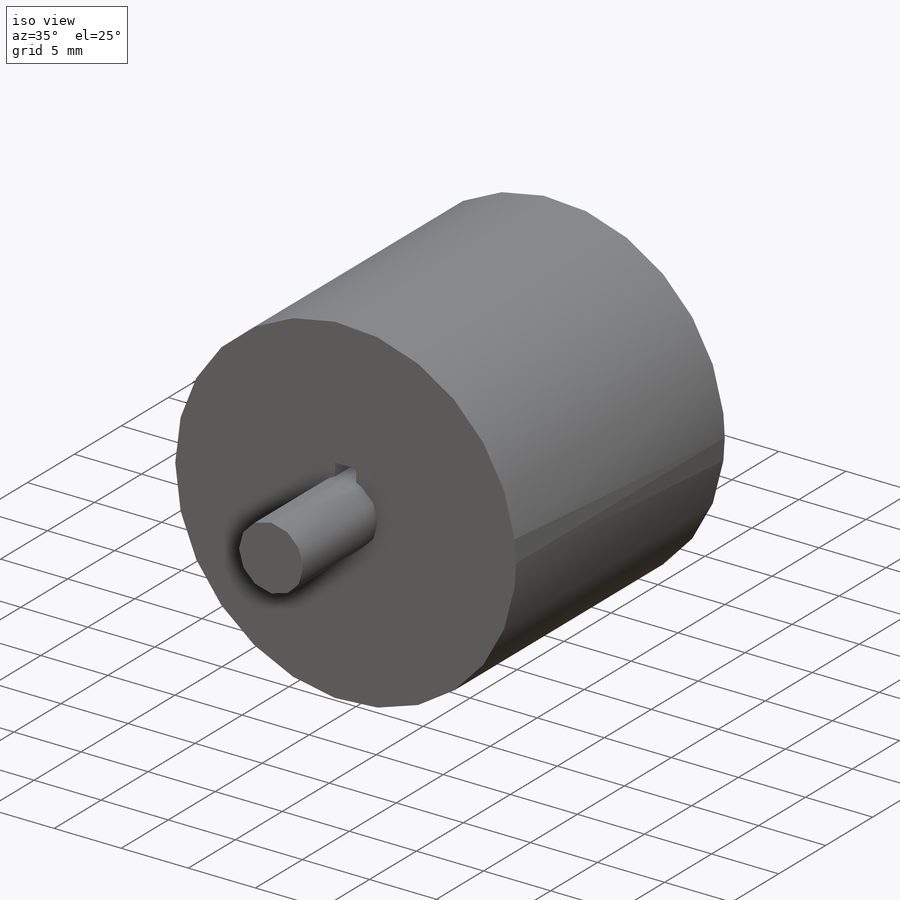
[diagram: iso view]
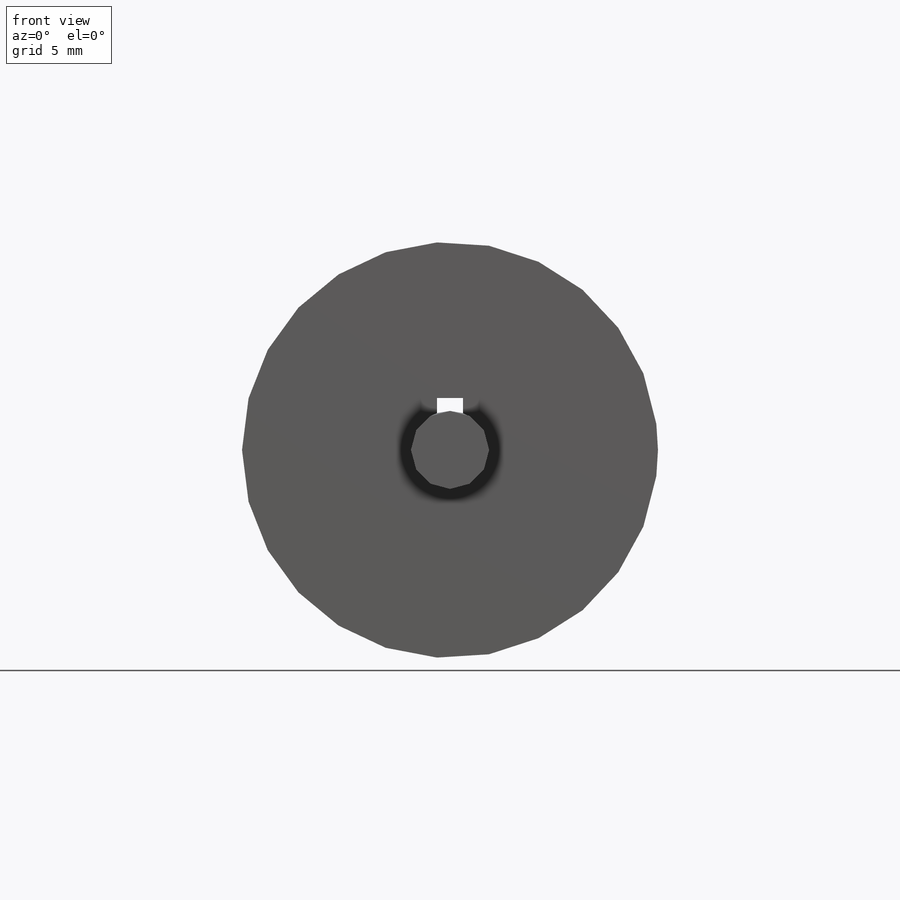
[diagram: front view]
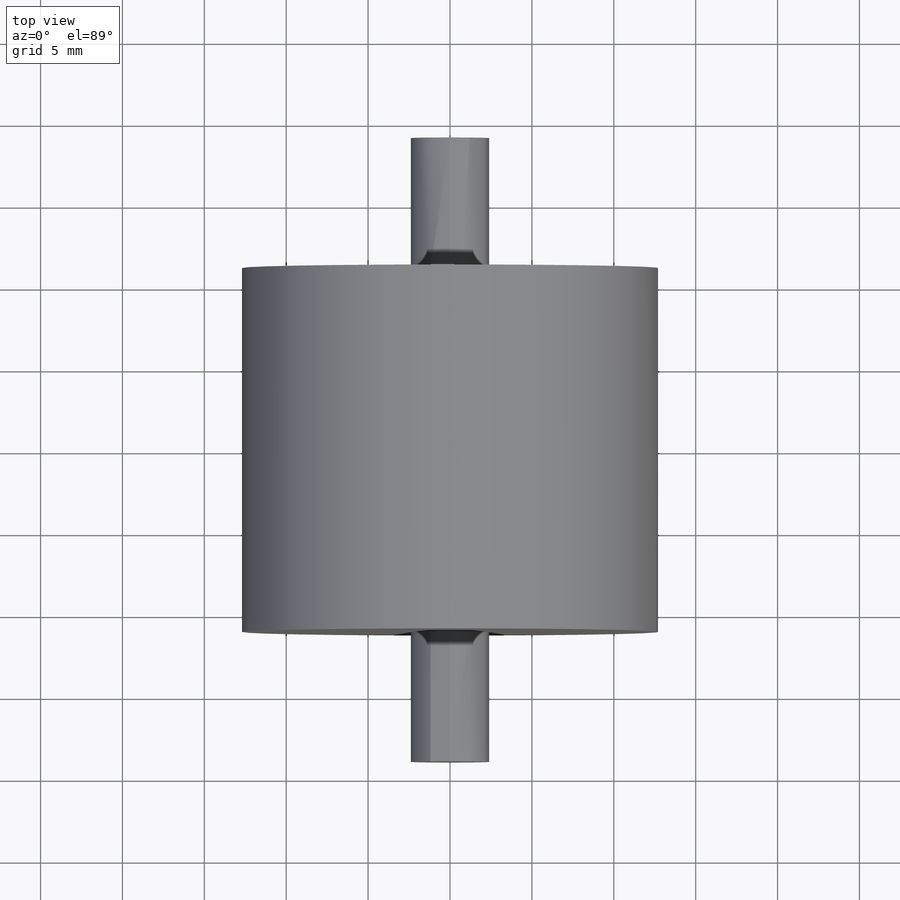
[diagram: top view]
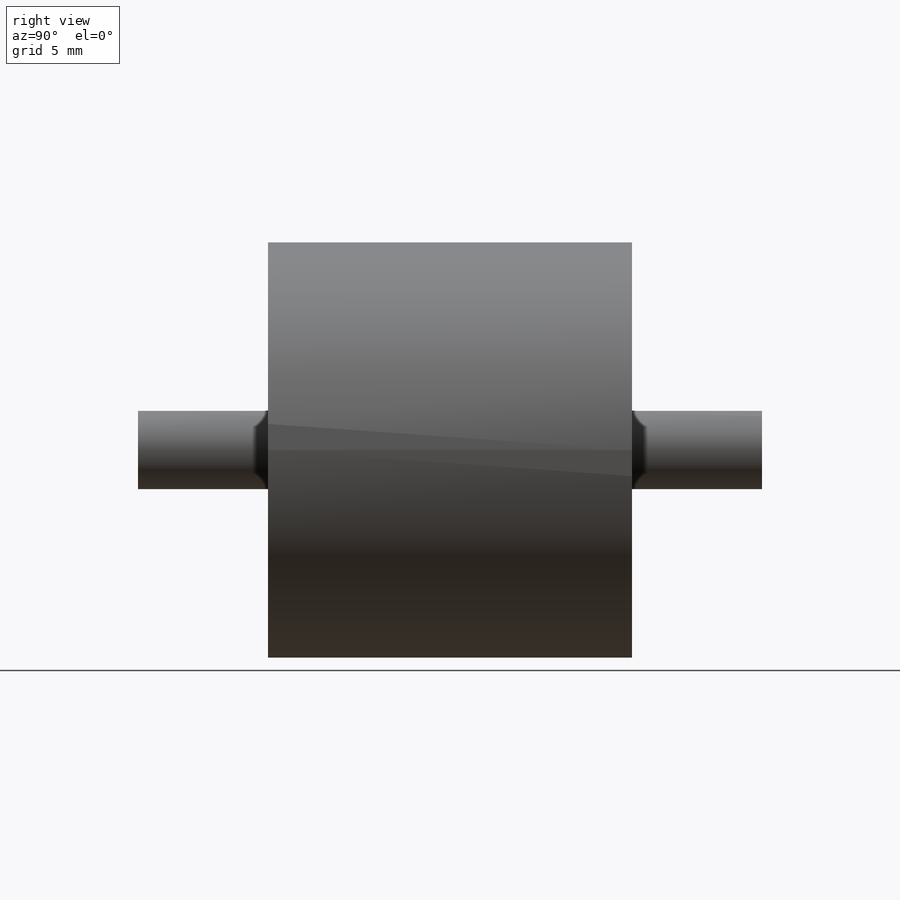
[diagram: right view]
SOLIDWORKS PART (.sldprt)
format: sldprt  version: not decoded by parser v0  size: 229,376 bytes
history: native  units: mm
features: sketch x3, extrude x2, material x1, cut_extrude x1 (+16 scaffold rows collapsed)
feature tree (23):
  scaffold x16  (default folders/planes/origin — collapsed)
  material  "6061 Alloy"
  sketch  "Sketch1"  dims[D1=25.4mm]
  extrude  "Extrude1"  Depth=22.225mm
  sketch  "Sketch2"  dims[D1=4.7625mm D2=1.5875mm]
  cut_extrude  "Extrude2"  [1 undecoded]
  sketch  "Sketch4"  dims[D1=4.7752mm]
  extrude  "Boss-Extrude1"  Depth=38.1mm
decode coverage: 5 of 6 modeling features carry decoded parameters
note: 1 parameter value undecoded
note: suppression state not decoded; provenance and decode notes live in map.json
